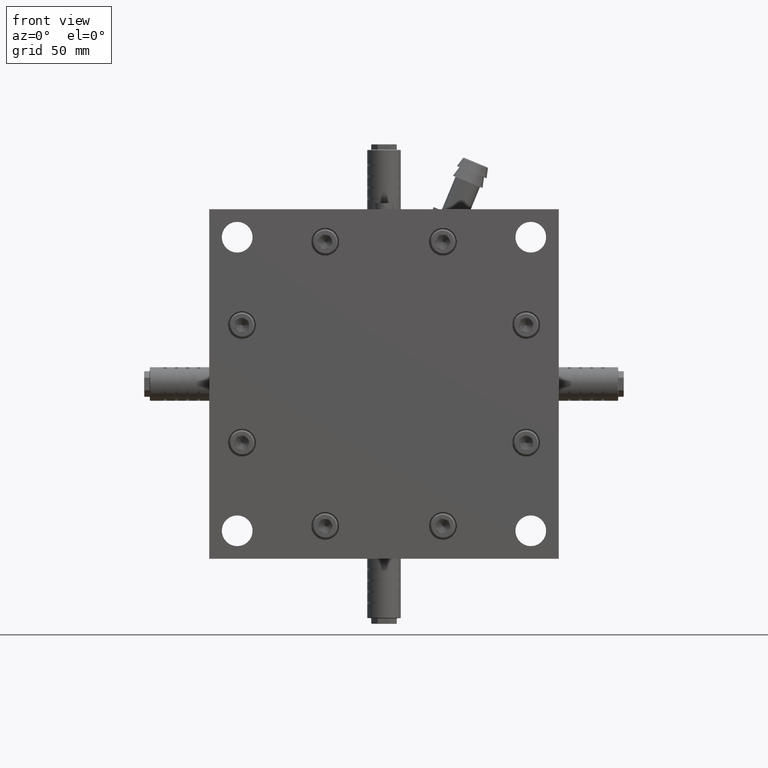
[diagram: clean part render]
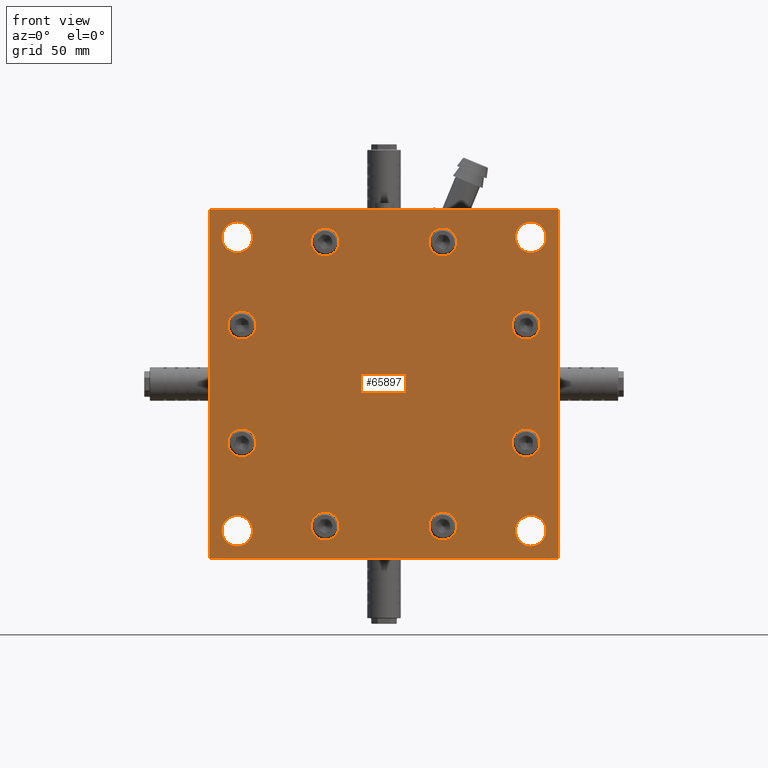
[diagram: same view with one face highlighted and labeled with its STEP entity id]
A machine part, front view. The second image highlights one B-rep face of the part: STEP entity #65897.
In plain terms, the highlighted planar face has unit normal (0, -1, 0).
Its self-contained STEP definition (entity closure, byte-faithful):
#111 = CARTESIAN_POINT ( 'NONE',  ( -42.09517756015925000, 0.0000000000000000000, -101.6267485762418100 ) ) ;
#404 = CIRCLE ( 'NONE', #64334, 9.999999999999994700 ) ;
#587 = EDGE_LOOP ( 'NONE', ( #761, #52423 ) ) ;
#761 = ORIENTED_EDGE ( 'NONE', *, *, #29651, .T. ) ;
#945 = FACE_BOUND ( 'NONE', #49868, .T. ) ;
#1264 = ORIENTED_EDGE ( 'NONE', *, *, #44441, .F. ) ;
#1417 = CIRCLE ( 'NONE', #22309, 9.999999999999994700 ) ;
#2098 = EDGE_CURVE ( 'NONE', #30515, #61886, #22760, .T. ) ;
#2879 = DIRECTION ( 'NONE',  ( 0.0000000000000000000, 0.0000000000000000000, 1.000000000000000000 ) ) ;
#3728 = ORIENTED_EDGE ( 'NONE', *, *, #72678, .F. ) ;
#4023 = DIRECTION ( 'NONE',  ( 0.0000000000000000000, 1.000000000000000000, 0.0000000000000000000 ) ) ;
#4641 = EDGE_CURVE ( 'NONE', #39485, #28832, #42547, .T. ) ;
#4713 = CARTESIAN_POINT ( 'NONE',  ( -42.09517756015925000, 0.0000000000000000000, -101.6267485762418100 ) ) ;
#4722 = CARTESIAN_POINT ( 'NONE',  ( -105.0000000000000000, 0.0000000000000000000, -105.0000000000000000 ) ) ;
#4990 = VECTOR ( 'NONE', #57305, 1000.000000000000000 ) ;
#5102 = DIRECTION ( 'NONE',  ( 0.0000000000000000000, 0.0000000000000000000, -1.000000000000000000 ) ) ;
#5816 = ORIENTED_EDGE ( 'NONE', *, *, #36752, .T. ) ;
#5862 = CIRCLE ( 'NONE', #34514, 10.99999999999999600 ) ;
#5926 = EDGE_LOOP ( 'NONE', ( #17204, #38539 ) ) ;
#6247 = AXIS2_PLACEMENT_3D ( 'NONE', #17692, #18168, #63325 ) ;
#6268 = VERTEX_POINT ( 'NONE', #57146 ) ;
#6934 = CIRCLE ( 'NONE', #8030, 9.999999999999994700 ) ;
#6960 = CARTESIAN_POINT ( 'NONE',  ( -105.0000000000000000, 0.0000000000000000000, -115.9999999999999900 ) ) ;
#7305 = CARTESIAN_POINT ( 'NONE',  ( 105.0000000000000000, 0.0000000000000000000, -115.9999999999999900 ) ) ;
#7996 = DIRECTION ( 'NONE',  ( 0.0000000000000000000, -1.000000000000000000, 0.0000000000000000000 ) ) ;
#8030 = AXIS2_PLACEMENT_3D ( 'NONE', #39020, #62094, #44734 ) ;
#9037 = CIRCLE ( 'NONE', #69233, 9.999999999999994700 ) ;
#9485 = DIRECTION ( 'NONE',  ( 0.0000000000000000000, 1.000000000000000000, 0.0000000000000000000 ) ) ;
#9659 = VECTOR ( 'NONE', #33067, 1000.000000000000000 ) ;
#9870 = FACE_BOUND ( 'NONE', #10431, .T. ) ;
#10073 = DIRECTION ( 'NONE',  ( 0.0000000000000000000, -1.000000000000000000, 0.0000000000000000000 ) ) ;
#10214 = DIRECTION ( 'NONE',  ( 0.0000000000000000000, -1.000000000000000000, 0.0000000000000000000 ) ) ;
#10415 = CARTESIAN_POINT ( 'NONE',  ( -42.09517756015995400, 0.0000000000000000000, 101.6267485762414100 ) ) ;
#10431 = EDGE_LOOP ( 'NONE', ( #61710, #56997 ) ) ;
#10522 = VERTEX_POINT ( 'NONE', #54614 ) ;
#10778 = FACE_OUTER_BOUND ( 'NONE', #58187, .T. ) ;
#11182 = DIRECTION ( 'NONE',  ( 0.0000000000000000000, -1.000000000000000000, 0.0000000000000000000 ) ) ;
#11489 = DIRECTION ( 'NONE',  ( 0.0000000000000000000, 1.000000000000000000, 0.0000000000000000000 ) ) ;
#11726 = VERTEX_POINT ( 'NONE', #53471 ) ;
#12414 = VERTEX_POINT ( 'NONE', #61155 ) ;
#12540 = FACE_BOUND ( 'NONE', #38474, .T. ) ;
#12784 = VERTEX_POINT ( 'NONE', #65265 ) ;
#13230 = AXIS2_PLACEMENT_3D ( 'NONE', #20218, #25688, #53998 ) ;
#13870 = CIRCLE ( 'NONE', #13230, 10.00000000000000200 ) ;
#13968 = VERTEX_POINT ( 'NONE', #28874 ) ;
#13991 = CARTESIAN_POINT ( 'NONE',  ( -101.6267485762414100, 0.0000000000000000000, -32.09517756016034400 ) ) ;
#14002 = AXIS2_PLACEMENT_3D ( 'NONE', #36885, #59272, #2879 ) ;
#14267 = CARTESIAN_POINT ( 'NONE',  ( 125.0000000000000000, 0.0000000000000000000, 125.0000000000000000 ) ) ;
#14375 = VERTEX_POINT ( 'NONE', #47299 ) ;
#14995 = DIRECTION ( 'NONE',  ( 0.0000000000000000000, 0.0000000000000000000, -1.000000000000000000 ) ) ;
#15058 = CARTESIAN_POINT ( 'NONE',  ( 101.6267485762420100, 0.0000000000000000000, -42.09517756015889500 ) ) ;
#15073 = CARTESIAN_POINT ( 'NONE',  ( -105.0000000000000000, 0.0000000000000000000, 94.00000000000000000 ) ) ;
#15149 = ORIENTED_EDGE ( 'NONE', *, *, #37135, .T. ) ;
#15189 = EDGE_CURVE ( 'NONE', #33145, #12414, #6934, .T. ) ;
#15319 = CIRCLE ( 'NONE', #68417, 10.99999999999999600 ) ;
#15365 = VERTEX_POINT ( 'NONE', #6960 ) ;
#15635 = EDGE_CURVE ( 'NONE', #35506, #31702, #27282, .T. ) ;
#15715 = CARTESIAN_POINT ( 'NONE',  ( 105.0000000000000000, 0.0000000000000000000, -105.0000000000000000 ) ) ;
#16016 = AXIS2_PLACEMENT_3D ( 'NONE', #59302, #25256, #64986 ) ;
#16113 = FACE_BOUND ( 'NONE', #64968, .T. ) ;
#16204 = EDGE_CURVE ( 'NONE', #61886, #52805, #24687, .T. ) ;
#16453 = DIRECTION ( 'NONE',  ( 0.0000000000000000000, 1.000000000000000000, 0.0000000000000000000 ) ) ;
#16781 = DIRECTION ( 'NONE',  ( 0.0000000000000000000, -1.000000000000000000, 0.0000000000000000000 ) ) ;
#17028 = ORIENTED_EDGE ( 'NONE', *, *, #38233, .F. ) ;
#17204 = ORIENTED_EDGE ( 'NONE', *, *, #15635, .F. ) ;
#17506 = DIRECTION ( 'NONE',  ( 1.000000000000000000, 0.0000000000000000000, 0.0000000000000000000 ) ) ;
#17692 = CARTESIAN_POINT ( 'NONE',  ( 101.6267485762420100, 0.0000000000000000000, -42.09517756015889500 ) ) ;
#17832 = VERTEX_POINT ( 'NONE', #32867 ) ;
#18168 = DIRECTION ( 'NONE',  ( 0.0000000000000000000, -1.000000000000000000, 0.0000000000000000000 ) ) ;
#18267 = CIRCLE ( 'NONE', #48550, 10.99999999999999600 ) ;
#18293 = CARTESIAN_POINT ( 'NONE',  ( -42.09517756015925000, 0.0000000000000000000, -91.62674857624180900 ) ) ;
#18295 = VERTEX_POINT ( 'NONE', #15073 ) ;
#18300 = CIRCLE ( 'NONE', #28763, 9.999999999999994700 ) ;
#19182 = CIRCLE ( 'NONE', #63760, 10.00000000000000200 ) ;
#19227 = ORIENTED_EDGE ( 'NONE', *, *, #44984, .T. ) ;
#19629 = AXIS2_PLACEMENT_3D ( 'NONE', #50587, #71455, #60076 ) ;
#20218 = CARTESIAN_POINT ( 'NONE',  ( 101.6267485762410000, 0.0000000000000000000, 42.09517756016104800 ) ) ;
#20297 = EDGE_LOOP ( 'NONE', ( #5816, #59024 ) ) ;
#20656 = CIRCLE ( 'NONE', #6247, 10.00000000000000200 ) ;
#20720 = AXIS2_PLACEMENT_3D ( 'NONE', #42820, #36825, #14995 ) ;
#21314 = CARTESIAN_POINT ( 'NONE',  ( -125.0000000000000000, 0.0000000000000000000, -125.0000000000000000 ) ) ;
#21436 = CARTESIAN_POINT ( 'NONE',  ( 125.0000000000000000, 0.0000000000000000000, 125.0000000000000000 ) ) ;
#21697 = AXIS2_PLACEMENT_3D ( 'NONE', #34350, #39363, #67848 ) ;
#22309 = AXIS2_PLACEMENT_3D ( 'NONE', #4713, #32717, #44435 ) ;
#22376 = AXIS2_PLACEMENT_3D ( 'NONE', #10415, #61300, #72944 ) ;
#22726 = ORIENTED_EDGE ( 'NONE', *, *, #16204, .F. ) ;
#22760 = LINE ( 'NONE', #29980, #4990 ) ;
#23465 = CARTESIAN_POINT ( 'NONE',  ( 101.6267485762410000, 0.0000000000000000000, 32.09517756016104800 ) ) ;
#23484 = EDGE_CURVE ( 'NONE', #44753, #32690, #66867, .T. ) ;
#24355 = AXIS2_PLACEMENT_3D ( 'NONE', #36244, #7996, #36497 ) ;
#24687 = LINE ( 'NONE', #45766, #38002 ) ;
#25256 = DIRECTION ( 'NONE',  ( 0.0000000000000000000, -1.000000000000000000, 0.0000000000000000000 ) ) ;
#25688 = DIRECTION ( 'NONE',  ( 0.0000000000000000000, -1.000000000000000000, 0.0000000000000000000 ) ) ;
#25868 = FACE_BOUND ( 'NONE', #33907, .T. ) ;
#25886 = EDGE_LOOP ( 'NONE', ( #43539, #40782 ) ) ;
#26175 = CIRCLE ( 'NONE', #19629, 10.99999999999999600 ) ;
#26697 = DIRECTION ( 'NONE',  ( 0.0000000000000000000, -1.000000000000000000, 0.0000000000000000000 ) ) ;
#27282 = CIRCLE ( 'NONE', #46020, 10.00000000000000200 ) ;
#27370 = EDGE_CURVE ( 'NONE', #56548, #71168, #1417, .T. ) ;
#27880 = EDGE_LOOP ( 'NONE', ( #46048, #39518 ) ) ;
#28108 = DIRECTION ( 'NONE',  ( 0.0000000000000000000, 0.0000000000000000000, 1.000000000000000000 ) ) ;
#28483 = FACE_BOUND ( 'NONE', #47480, .T. ) ;
#28763 = AXIS2_PLACEMENT_3D ( 'NONE', #30409, #64415, #36108 ) ;
#28832 = VERTEX_POINT ( 'NONE', #72861 ) ;
#28874 = CARTESIAN_POINT ( 'NONE',  ( 42.09517756015995400, 0.0000000000000000000, 111.6267485762414000 ) ) ;
#29651 = EDGE_CURVE ( 'NONE', #6268, #18295, #26175, .T. ) ;
#29890 = ORIENTED_EDGE ( 'NONE', *, *, #42377, .F. ) ;
#29980 = CARTESIAN_POINT ( 'NONE',  ( -125.0000000000000000, 0.0000000000000000000, 125.0000000000000000 ) ) ;
#30094 = AXIS2_PLACEMENT_3D ( 'NONE', #15715, #4023, #61134 ) ;
#30409 = CARTESIAN_POINT ( 'NONE',  ( 42.09517756016070000, 0.0000000000000000000, -101.6267485762412000 ) ) ;
#30422 = EDGE_CURVE ( 'NONE', #58028, #44603, #42792, .T. ) ;
#30515 = VERTEX_POINT ( 'NONE', #62827 ) ;
#30731 = CARTESIAN_POINT ( 'NONE',  ( 42.09517756016070000, 0.0000000000000000000, -91.62674857624119800 ) ) ;
#31189 = FACE_BOUND ( 'NONE', #25886, .T. ) ;
#31253 = EDGE_CURVE ( 'NONE', #15365, #10522, #35576, .T. ) ;
#31376 = CIRCLE ( 'NONE', #30094, 10.99999999999999600 ) ;
#31702 = VERTEX_POINT ( 'NONE', #13991 ) ;
#32216 = EDGE_CURVE ( 'NONE', #28832, #39485, #66537, .T. ) ;
#32353 = CARTESIAN_POINT ( 'NONE',  ( -101.6267485762416000, 0.0000000000000000000, 42.09517756015959800 ) ) ;
#32690 = VERTEX_POINT ( 'NONE', #66511 ) ;
#32717 = DIRECTION ( 'NONE',  ( 0.0000000000000000000, -1.000000000000000000, 0.0000000000000000000 ) ) ;
#32867 = CARTESIAN_POINT ( 'NONE',  ( -42.09517756015995400, 0.0000000000000000000, 91.62674857624141100 ) ) ;
#33067 = DIRECTION ( 'NONE',  ( 0.0000000000000000000, 0.0000000000000000000, -1.000000000000000000 ) ) ;
#33145 = VERTEX_POINT ( 'NONE', #30731 ) ;
#33426 = CARTESIAN_POINT ( 'NONE',  ( 101.6267485762410000, 0.0000000000000000000, 42.09517756016104800 ) ) ;
#33537 = CARTESIAN_POINT ( 'NONE',  ( 105.0000000000000000, 0.0000000000000000000, 105.0000000000000000 ) ) ;
#33907 = EDGE_LOOP ( 'NONE', ( #15149, #60841 ) ) ;
#34046 = VECTOR ( 'NONE', #50571, 1000.000000000000000 ) ;
#34350 = CARTESIAN_POINT ( 'NONE',  ( -101.6267485762416000, 0.0000000000000000000, 42.09517756015959800 ) ) ;
#34514 = AXIS2_PLACEMENT_3D ( 'NONE', #65707, #72152, #37906 ) ;
#34527 = CARTESIAN_POINT ( 'NONE',  ( 105.0000000000000000, 0.0000000000000000000, 105.0000000000000000 ) ) ;
#34531 = EDGE_CURVE ( 'NONE', #57575, #37682, #13870, .T. ) ;
#34975 = LINE ( 'NONE', #21314, #34046 ) ;
#35506 = VERTEX_POINT ( 'NONE', #50322 ) ;
#35576 = CIRCLE ( 'NONE', #14002, 10.99999999999999600 ) ;
#36108 = DIRECTION ( 'NONE',  ( 0.0000000000000000000, 0.0000000000000000000, -1.000000000000000000 ) ) ;
#36229 = ORIENTED_EDGE ( 'NONE', *, *, #2098, .F. ) ;
#36244 = CARTESIAN_POINT ( 'NONE',  ( 42.09517756015995400, 0.0000000000000000000, 101.6267485762414100 ) ) ;
#36497 = DIRECTION ( 'NONE',  ( 0.0000000000000000000, 0.0000000000000000000, -1.000000000000000000 ) ) ;
#36752 = EDGE_CURVE ( 'NONE', #44603, #58028, #15319, .T. ) ;
#36825 = DIRECTION ( 'NONE',  ( 0.0000000000000000000, -1.000000000000000000, 0.0000000000000000000 ) ) ;
#36885 = CARTESIAN_POINT ( 'NONE',  ( -105.0000000000000000, 0.0000000000000000000, -105.0000000000000000 ) ) ;
#37105 = CARTESIAN_POINT ( 'NONE',  ( -101.6267485762414100, 0.0000000000000000000, -42.09517756016034400 ) ) ;
#37135 = EDGE_CURVE ( 'NONE', #10522, #15365, #18267, .T. ) ;
#37202 = EDGE_CURVE ( 'NONE', #31702, #35506, #19182, .T. ) ;
#37682 = VERTEX_POINT ( 'NONE', #23465 ) ;
#37906 = DIRECTION ( 'NONE',  ( 0.0000000000000000000, 0.0000000000000000000, 1.000000000000000000 ) ) ;
#38002 = VECTOR ( 'NONE', #17506, 1000.000000000000000 ) ;
#38004 = EDGE_LOOP ( 'NONE', ( #1264, #17028 ) ) ;
#38053 = LINE ( 'NONE', #21436, #9659 ) ;
#38118 = DIRECTION ( 'NONE',  ( 0.0000000000000000000, -1.000000000000000000, 0.0000000000000000000 ) ) ;
#38233 = EDGE_CURVE ( 'NONE', #50749, #11726, #20656, .T. ) ;
#38411 = CIRCLE ( 'NONE', #20720, 9.999999999999994700 ) ;
#38474 = EDGE_LOOP ( 'NONE', ( #65342, #59591 ) ) ;
#38539 = ORIENTED_EDGE ( 'NONE', *, *, #37202, .F. ) ;
#38858 = CARTESIAN_POINT ( 'NONE',  ( 105.0000000000000000, 0.0000000000000000000, 115.9999999999999900 ) ) ;
#39020 = CARTESIAN_POINT ( 'NONE',  ( 42.09517756016070000, 0.0000000000000000000, -101.6267485762412000 ) ) ;
#39363 = DIRECTION ( 'NONE',  ( 0.0000000000000000000, -1.000000000000000000, 0.0000000000000000000 ) ) ;
#39485 = VERTEX_POINT ( 'NONE', #44161 ) ;
#39518 = ORIENTED_EDGE ( 'NONE', *, *, #64324, .F. ) ;
#39540 = EDGE_CURVE ( 'NONE', #37682, #57575, #48019, .T. ) ;
#40782 = ORIENTED_EDGE ( 'NONE', *, *, #70957, .F. ) ;
#41255 = DIRECTION ( 'NONE',  ( 0.0000000000000000000, 1.000000000000000000, 0.0000000000000000000 ) ) ;
#42377 = EDGE_CURVE ( 'NONE', #12414, #33145, #18300, .T. ) ;
#42547 = CIRCLE ( 'NONE', #21697, 10.00000000000000200 ) ;
#42792 = CIRCLE ( 'NONE', #67210, 10.99999999999999600 ) ;
#42820 = CARTESIAN_POINT ( 'NONE',  ( 42.09517756015995400, 0.0000000000000000000, 101.6267485762414100 ) ) ;
#43539 = ORIENTED_EDGE ( 'NONE', *, *, #48109, .F. ) ;
#44161 = CARTESIAN_POINT ( 'NONE',  ( -101.6267485762416000, 0.0000000000000000000, 52.09517756015959800 ) ) ;
#44435 = DIRECTION ( 'NONE',  ( 0.0000000000000000000, 0.0000000000000000000, -1.000000000000000000 ) ) ;
#44441 = EDGE_CURVE ( 'NONE', #11726, #50749, #67818, .T. ) ;
#44603 = VERTEX_POINT ( 'NONE', #38858 ) ;
#44734 = DIRECTION ( 'NONE',  ( 0.0000000000000000000, 0.0000000000000000000, -1.000000000000000000 ) ) ;
#44753 = VERTEX_POINT ( 'NONE', #7305 ) ;
#44888 = DIRECTION ( 'NONE',  ( 0.0000000000000000000, 0.0000000000000000000, -1.000000000000000000 ) ) ;
#44984 = EDGE_CURVE ( 'NONE', #32690, #44753, #31376, .T. ) ;
#45766 = CARTESIAN_POINT ( 'NONE',  ( -125.0000000000000000, 0.0000000000000000000, 125.0000000000000000 ) ) ;
#46020 = AXIS2_PLACEMENT_3D ( 'NONE', #37105, #26697, #48533 ) ;
#46048 = ORIENTED_EDGE ( 'NONE', *, *, #27370, .F. ) ;
#46233 = CARTESIAN_POINT ( 'NONE',  ( 101.6267485762410000, 0.0000000000000000000, 52.09517756016104800 ) ) ;
#46261 = FACE_BOUND ( 'NONE', #27880, .T. ) ;
#47299 = CARTESIAN_POINT ( 'NONE',  ( -42.09517756015995400, 0.0000000000000000000, 111.6267485762414000 ) ) ;
#47480 = EDGE_LOOP ( 'NONE', ( #29890, #57083 ) ) ;
#48019 = CIRCLE ( 'NONE', #71910, 10.00000000000000200 ) ;
#48038 = CARTESIAN_POINT ( 'NONE',  ( -125.0000000000000000, 0.0000000000000000000, 125.0000000000000000 ) ) ;
#48109 = EDGE_CURVE ( 'NONE', #17832, #14375, #9037, .T. ) ;
#48533 = DIRECTION ( 'NONE',  ( 0.0000000000000000000, 0.0000000000000000000, -1.000000000000000000 ) ) ;
#48550 = AXIS2_PLACEMENT_3D ( 'NONE', #4722, #9485, #55156 ) ;
#48759 = AXIS2_PLACEMENT_3D ( 'NONE', #67780, #16453, #28108 ) ;
#49531 = DIRECTION ( 'NONE',  ( 0.0000000000000000000, 0.0000000000000000000, -1.000000000000000000 ) ) ;
#49868 = EDGE_LOOP ( 'NONE', ( #19227, #64899 ) ) ;
#50322 = CARTESIAN_POINT ( 'NONE',  ( -101.6267485762414100, 0.0000000000000000000, -52.09517756016035200 ) ) ;
#50530 = AXIS2_PLACEMENT_3D ( 'NONE', #15058, #38118, #49531 ) ;
#50571 = DIRECTION ( 'NONE',  ( -1.000000000000000000, 0.0000000000000000000, 5.551115123125779600E-017 ) ) ;
#50587 = CARTESIAN_POINT ( 'NONE',  ( -105.0000000000000000, 0.0000000000000000000, 105.0000000000000000 ) ) ;
#50684 = FACE_BOUND ( 'NONE', #38004, .T. ) ;
#50749 = VERTEX_POINT ( 'NONE', #66857 ) ;
#51154 = DIRECTION ( 'NONE',  ( 0.0000000000000000000, 0.0000000000000000000, 1.000000000000000000 ) ) ;
#51323 = CARTESIAN_POINT ( 'NONE',  ( -101.6267485762414100, 0.0000000000000000000, -42.09517756016034400 ) ) ;
#51477 = CARTESIAN_POINT ( 'NONE',  ( 125.0000000000000000, 0.0000000000000000000, -125.0000000000000000 ) ) ;
#51626 = DIRECTION ( 'NONE',  ( 0.0000000000000000000, 0.0000000000000000000, 1.000000000000000000 ) ) ;
#52423 = ORIENTED_EDGE ( 'NONE', *, *, #73566, .T. ) ;
#52805 = VERTEX_POINT ( 'NONE', #14267 ) ;
#53471 = CARTESIAN_POINT ( 'NONE',  ( 101.6267485762420100, 0.0000000000000000000, -52.09517756015889500 ) ) ;
#53998 = DIRECTION ( 'NONE',  ( 0.0000000000000000000, 0.0000000000000000000, -1.000000000000000000 ) ) ;
#54614 = CARTESIAN_POINT ( 'NONE',  ( -105.0000000000000000, 0.0000000000000000000, -94.00000000000000000 ) ) ;
#55156 = DIRECTION ( 'NONE',  ( 0.0000000000000000000, 0.0000000000000000000, 1.000000000000000000 ) ) ;
#56066 = FACE_BOUND ( 'NONE', #20297, .T. ) ;
#56380 = CARTESIAN_POINT ( 'NONE',  ( -42.09517756015995400, 0.0000000000000000000, 101.6267485762414100 ) ) ;
#56548 = VERTEX_POINT ( 'NONE', #70548 ) ;
#56997 = ORIENTED_EDGE ( 'NONE', *, *, #34531, .F. ) ;
#57083 = ORIENTED_EDGE ( 'NONE', *, *, #15189, .F. ) ;
#57146 = CARTESIAN_POINT ( 'NONE',  ( -105.0000000000000000, 0.0000000000000000000, 115.9999999999999900 ) ) ;
#57305 = DIRECTION ( 'NONE',  ( 0.0000000000000000000, 0.0000000000000000000, 1.000000000000000000 ) ) ;
#57575 = VERTEX_POINT ( 'NONE', #46233 ) ;
#58028 = VERTEX_POINT ( 'NONE', #63528 ) ;
#58187 = EDGE_LOOP ( 'NONE', ( #36229, #58476, #67242, #22726 ) ) ;
#58476 = ORIENTED_EDGE ( 'NONE', *, *, #59019, .F. ) ;
#58945 = CIRCLE ( 'NONE', #24355, 9.999999999999994700 ) ;
#59019 = EDGE_CURVE ( 'NONE', #72533, #30515, #34975, .T. ) ;
#59024 = ORIENTED_EDGE ( 'NONE', *, *, #30422, .T. ) ;
#59272 = DIRECTION ( 'NONE',  ( 0.0000000000000000000, 1.000000000000000000, 0.0000000000000000000 ) ) ;
#59302 = CARTESIAN_POINT ( 'NONE',  ( -125.0000000000000000, 0.0000000000000000000, 125.0000000000000000 ) ) ;
#59591 = ORIENTED_EDGE ( 'NONE', *, *, #4641, .F. ) ;
#60076 = DIRECTION ( 'NONE',  ( 0.0000000000000000000, 0.0000000000000000000, 1.000000000000000000 ) ) ;
#60841 = ORIENTED_EDGE ( 'NONE', *, *, #31253, .T. ) ;
#60960 = DIRECTION ( 'NONE',  ( 0.0000000000000000000, 0.0000000000000000000, -1.000000000000000000 ) ) ;
#61134 = DIRECTION ( 'NONE',  ( 0.0000000000000000000, 0.0000000000000000000, 1.000000000000000000 ) ) ;
#61155 = CARTESIAN_POINT ( 'NONE',  ( 42.09517756016070000, 0.0000000000000000000, -111.6267485762412000 ) ) ;
#61300 = DIRECTION ( 'NONE',  ( 0.0000000000000000000, -1.000000000000000000, 0.0000000000000000000 ) ) ;
#61710 = ORIENTED_EDGE ( 'NONE', *, *, #39540, .F. ) ;
#61886 = VERTEX_POINT ( 'NONE', #48038 ) ;
#61936 = EDGE_CURVE ( 'NONE', #52805, #72533, #38053, .T. ) ;
#62094 = DIRECTION ( 'NONE',  ( 0.0000000000000000000, -1.000000000000000000, 0.0000000000000000000 ) ) ;
#62827 = CARTESIAN_POINT ( 'NONE',  ( -125.0000000000000000, 0.0000000000000000000, -125.0000000000000000 ) ) ;
#63325 = DIRECTION ( 'NONE',  ( 0.0000000000000000000, 0.0000000000000000000, -1.000000000000000000 ) ) ;
#63528 = CARTESIAN_POINT ( 'NONE',  ( 105.0000000000000000, 0.0000000000000000000, 94.00000000000000000 ) ) ;
#63760 = AXIS2_PLACEMENT_3D ( 'NONE', #51323, #11182, #73452 ) ;
#64324 = EDGE_CURVE ( 'NONE', #71168, #56548, #404, .T. ) ;
#64334 = AXIS2_PLACEMENT_3D ( 'NONE', #111, #16781, #5102 ) ;
#64415 = DIRECTION ( 'NONE',  ( 0.0000000000000000000, -1.000000000000000000, 0.0000000000000000000 ) ) ;
#64899 = ORIENTED_EDGE ( 'NONE', *, *, #23484, .T. ) ;
#64968 = EDGE_LOOP ( 'NONE', ( #69216, #3728 ) ) ;
#64986 = DIRECTION ( 'NONE',  ( 0.0000000000000000000, 0.0000000000000000000, -1.000000000000000000 ) ) ;
#65265 = CARTESIAN_POINT ( 'NONE',  ( 42.09517756015995400, 0.0000000000000000000, 91.62674857624141100 ) ) ;
#65342 = ORIENTED_EDGE ( 'NONE', *, *, #32216, .F. ) ;
#65707 = CARTESIAN_POINT ( 'NONE',  ( -105.0000000000000000, 0.0000000000000000000, 105.0000000000000000 ) ) ;
#65766 = DIRECTION ( 'NONE',  ( 0.0000000000000000000, 0.0000000000000000000, -1.000000000000000000 ) ) ;
#65897 = ADVANCED_FACE ( 'NONE', ( #9870, #50684, #28483, #46261, #72922, #12540, #31189, #16113, #945, #56066, #25868, #10778, #69363 ), #70189, .T. ) ;
#66511 = CARTESIAN_POINT ( 'NONE',  ( 105.0000000000000000, 0.0000000000000000000, -94.00000000000000000 ) ) ;
#66537 = CIRCLE ( 'NONE', #73020, 10.00000000000000200 ) ;
#66857 = CARTESIAN_POINT ( 'NONE',  ( 101.6267485762420100, 0.0000000000000000000, -32.09517756015889500 ) ) ;
#66867 = CIRCLE ( 'NONE', #48759, 10.99999999999999600 ) ;
#67210 = AXIS2_PLACEMENT_3D ( 'NONE', #34527, #41255, #51626 ) ;
#67242 = ORIENTED_EDGE ( 'NONE', *, *, #61936, .F. ) ;
#67780 = CARTESIAN_POINT ( 'NONE',  ( 105.0000000000000000, 0.0000000000000000000, -105.0000000000000000 ) ) ;
#67818 = CIRCLE ( 'NONE', #50530, 10.00000000000000200 ) ;
#67848 = DIRECTION ( 'NONE',  ( 0.0000000000000000000, 0.0000000000000000000, -1.000000000000000000 ) ) ;
#68417 = AXIS2_PLACEMENT_3D ( 'NONE', #33537, #11489, #51154 ) ;
#69216 = ORIENTED_EDGE ( 'NONE', *, *, #72147, .F. ) ;
#69233 = AXIS2_PLACEMENT_3D ( 'NONE', #56380, #10214, #65766 ) ;
#69363 = FACE_BOUND ( 'NONE', #587, .T. ) ;
#70189 = PLANE ( 'NONE',  #16016 ) ;
#70548 = CARTESIAN_POINT ( 'NONE',  ( -42.09517756015925000, 0.0000000000000000000, -111.6267485762418100 ) ) ;
#70957 = EDGE_CURVE ( 'NONE', #14375, #17832, #71033, .T. ) ;
#71033 = CIRCLE ( 'NONE', #22376, 9.999999999999994700 ) ;
#71168 = VERTEX_POINT ( 'NONE', #18293 ) ;
#71455 = DIRECTION ( 'NONE',  ( 0.0000000000000000000, 1.000000000000000000, 0.0000000000000000000 ) ) ;
#71910 = AXIS2_PLACEMENT_3D ( 'NONE', #33426, #73177, #44888 ) ;
#72147 = EDGE_CURVE ( 'NONE', #12784, #13968, #58945, .T. ) ;
#72152 = DIRECTION ( 'NONE',  ( 0.0000000000000000000, 1.000000000000000000, 0.0000000000000000000 ) ) ;
#72533 = VERTEX_POINT ( 'NONE', #51477 ) ;
#72678 = EDGE_CURVE ( 'NONE', #13968, #12784, #38411, .T. ) ;
#72861 = CARTESIAN_POINT ( 'NONE',  ( -101.6267485762416000, 0.0000000000000000000, 32.09517756015959800 ) ) ;
#72922 = FACE_BOUND ( 'NONE', #5926, .T. ) ;
#72944 = DIRECTION ( 'NONE',  ( 0.0000000000000000000, 0.0000000000000000000, -1.000000000000000000 ) ) ;
#73020 = AXIS2_PLACEMENT_3D ( 'NONE', #32353, #10073, #60960 ) ;
#73177 = DIRECTION ( 'NONE',  ( 0.0000000000000000000, -1.000000000000000000, 0.0000000000000000000 ) ) ;
#73452 = DIRECTION ( 'NONE',  ( 0.0000000000000000000, 0.0000000000000000000, -1.000000000000000000 ) ) ;
#73566 = EDGE_CURVE ( 'NONE', #18295, #6268, #5862, .T. ) ;